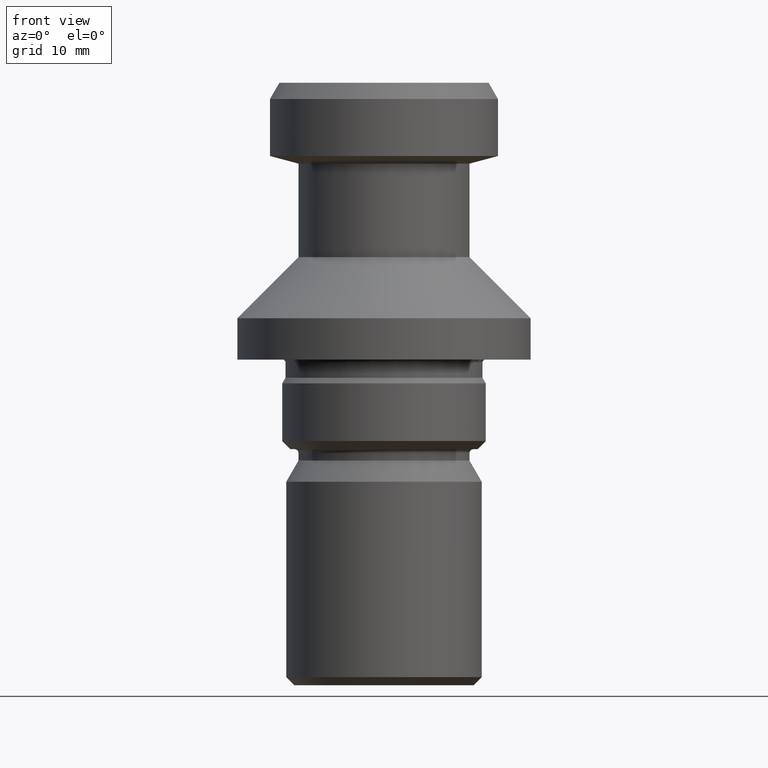
[diagram: clean part render]
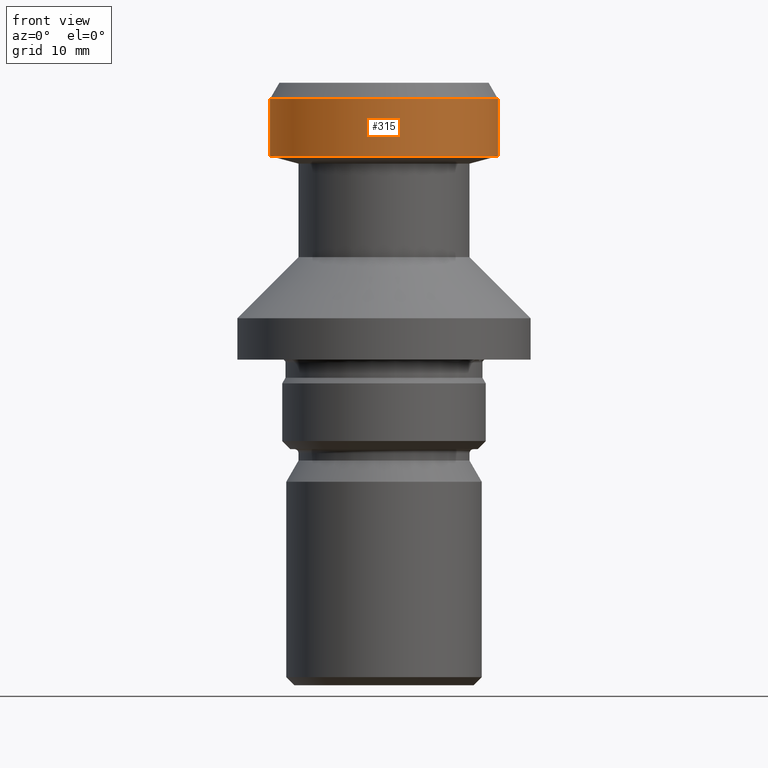
[diagram: same view with one face highlighted and labeled with its STEP entity id]
A machine part, front view. The second image highlights one B-rep face of the part: STEP entity #315.
In plain terms, the highlighted cylindrical surface (partial cylindrical patch) has radius 14 mm, axis along (-0, -0, 1).
Its self-contained STEP definition (entity closure, byte-faithful):
#2 = LINE ( 'NONE', #312, #795 ) ;
#145 = CARTESIAN_POINT ( 'NONE',  ( -14.00000000000000200, 1.714505518806294800E-015, -9.000000000000003600 ) ) ;
#167 = AXIS2_PLACEMENT_3D ( 'NONE', #886, #467, #531 ) ;
#204 = AXIS2_PLACEMENT_3D ( 'NONE', #880, #214, #559 ) ;
#214 = DIRECTION ( 'NONE',  ( -0.0000000000000000000, -0.0000000000000000000, 1.000000000000000000 ) ) ;
#225 = EDGE_CURVE ( 'NONE', #532, #321, #485, .T. ) ;
#248 = DIRECTION ( 'NONE',  ( -0.0000000000000000000, -0.0000000000000000000, 1.000000000000000000 ) ) ;
#269 = ORIENTED_EDGE ( 'NONE', *, *, #986, .F. ) ;
#312 = CARTESIAN_POINT ( 'NONE',  ( 14.00000000000000000, 0.0000000000000000000, 0.0000000000000000000 ) ) ;
#315 = ADVANCED_FACE ( 'NONE', ( #1031 ), #390, .T. ) ;
#321 = VERTEX_POINT ( 'NONE', #662 ) ;
#341 = CIRCLE ( 'NONE', #204, 14.00000000000000000 ) ;
#390 = CYLINDRICAL_SURFACE ( 'NONE', #167, 14.00000000000000000 ) ;
#396 = ORIENTED_EDGE ( 'NONE', *, *, #446, .F. ) ;
#446 = EDGE_CURVE ( 'NONE', #754, #500, #341, .T. ) ;
#453 = CARTESIAN_POINT ( 'NONE',  ( 14.00000000000000000, 0.0000000000000000000, -2.000000000000000000 ) ) ;
#467 = DIRECTION ( 'NONE',  ( -0.0000000000000000000, -0.0000000000000000000, 1.000000000000000000 ) ) ;
#485 = CIRCLE ( 'NONE', #487, 14.00000000000000000 ) ;
#487 = AXIS2_PLACEMENT_3D ( 'NONE', #861, #859, #869 ) ;
#500 = VERTEX_POINT ( 'NONE', #453 ) ;
#531 = DIRECTION ( 'NONE',  ( 1.000000000000000000, 0.0000000000000000000, 0.0000000000000000000 ) ) ;
#532 = VERTEX_POINT ( 'NONE', #145 ) ;
#559 = DIRECTION ( 'NONE',  ( 1.000000000000000000, 0.0000000000000000000, 0.0000000000000000000 ) ) ;
#599 = ORIENTED_EDGE ( 'NONE', *, *, #225, .T. ) ;
#662 = CARTESIAN_POINT ( 'NONE',  ( 14.00000000000000200, 0.0000000000000000000, -9.000000000000003600 ) ) ;
#712 = ORIENTED_EDGE ( 'NONE', *, *, #879, .T. ) ;
#720 = LINE ( 'NONE', #755, #881 ) ;
#748 = DIRECTION ( 'NONE',  ( -0.0000000000000000000, -0.0000000000000000000, 1.000000000000000000 ) ) ;
#754 = VERTEX_POINT ( 'NONE', #970 ) ;
#755 = CARTESIAN_POINT ( 'NONE',  ( -14.00000000000000000, 1.714505518806294600E-015, 0.0000000000000000000 ) ) ;
#783 = EDGE_LOOP ( 'NONE', ( #269, #599, #712, #396 ) ) ;
#795 = VECTOR ( 'NONE', #248, 1000.000000000000000 ) ;
#859 = DIRECTION ( 'NONE',  ( -0.0000000000000000000, -0.0000000000000000000, 1.000000000000000000 ) ) ;
#861 = CARTESIAN_POINT ( 'NONE',  ( 0.0000000000000000000, 0.0000000000000000000, -9.000000000000003600 ) ) ;
#869 = DIRECTION ( 'NONE',  ( 1.000000000000000000, 0.0000000000000000000, 0.0000000000000000000 ) ) ;
#879 = EDGE_CURVE ( 'NONE', #321, #500, #2, .T. ) ;
#880 = CARTESIAN_POINT ( 'NONE',  ( 0.0000000000000000000, 0.0000000000000000000, -2.000000000000000000 ) ) ;
#881 = VECTOR ( 'NONE', #748, 1000.000000000000000 ) ;
#886 = CARTESIAN_POINT ( 'NONE',  ( 0.0000000000000000000, 0.0000000000000000000, 0.0000000000000000000 ) ) ;
#970 = CARTESIAN_POINT ( 'NONE',  ( -14.00000000000000000, 1.714505518806294600E-015, -2.000000000000000000 ) ) ;
#986 = EDGE_CURVE ( 'NONE', #532, #754, #720, .T. ) ;
#1031 = FACE_OUTER_BOUND ( 'NONE', #783, .T. ) ;